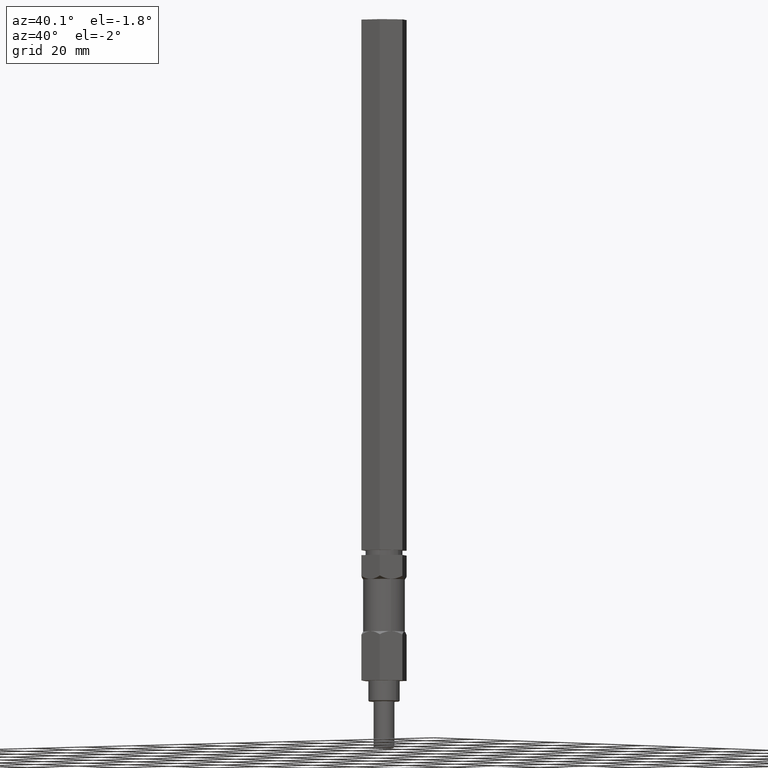
[diagram: clean part render]
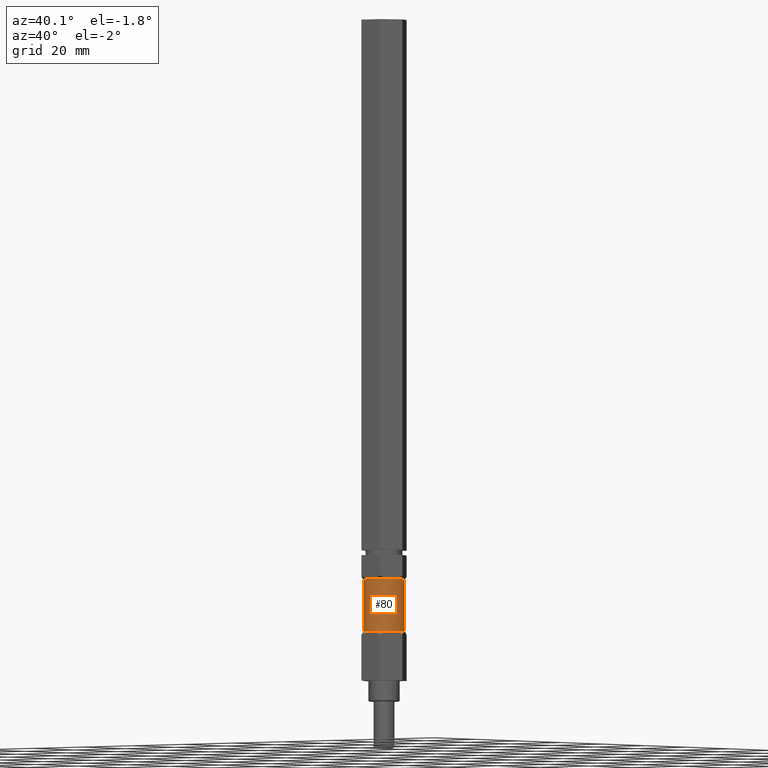
[diagram: same view with one face highlighted and labeled with its STEP entity id]
A machine part, auxiliary view. The second image highlights one B-rep face of the part: STEP entity #80.
In plain terms, the highlighted cylindrical surface (bore or boss wall) has radius 6.35 mm, axis along (-0, -0, 1).
Its self-contained STEP definition (entity closure, byte-faithful):
#57 = EDGE_CURVE ( 'NONE', #1714, #1814, #1559, .T. ) ;
#62 = ORIENTED_EDGE ( 'NONE', *, *, #1272, .T. ) ;
#80 = ADVANCED_FACE ( 'NONE', ( #1193, #792 ), #355, .T. ) ;
#114 = ORIENTED_EDGE ( 'NONE', *, *, #1328, .T. ) ;
#138 = DIRECTION ( 'NONE',  ( 0.0000000000000000000, 0.0000000000000000000, -1.000000000000000000 ) ) ;
#155 = CIRCLE ( 'NONE', #1788, 6.350000000000001421 ) ;
#159 = DIRECTION ( 'NONE',  ( 1.000000000000000000, 0.0000000000000000000, 0.0000000000000000000 ) ) ;
#176 = AXIS2_PLACEMENT_3D ( 'NONE', #728, #1390, #197 ) ;
#197 = DIRECTION ( 'NONE',  ( 1.000000000000000000, 0.0000000000000000000, 0.0000000000000000000 ) ) ;
#207 = CIRCLE ( 'NONE', #1817, 6.350000000000001421 ) ;
#228 = CARTESIAN_POINT ( 'NONE',  ( -45.17549388958741474, 28.90928631796896298, -62.54626758042453361 ) ) ;
#244 = DIRECTION ( 'NONE',  ( 0.0000000000000000000, 0.0000000000000000000, -1.000000000000000000 ) ) ;
#247 = VERTEX_POINT ( 'NONE', #1029 ) ;
#281 = EDGE_CURVE ( 'NONE', #922, #1175, #207, .T. ) ;
#288 = VERTEX_POINT ( 'NONE', #686 ) ;
#302 = VERTEX_POINT ( 'NONE', #1222 ) ;
#313 = CIRCLE ( 'NONE', #2065, 6.350000000000001421 ) ;
#323 = CARTESIAN_POINT ( 'NONE',  ( -45.17549388958741474, 28.90928631796896298, -62.54626758042453361 ) ) ;
#355 = CYLINDRICAL_SURFACE ( 'NONE', #1238, 6.350000000000001421 ) ;
#356 = EDGE_LOOP ( 'NONE', ( #62, #1250, #734, #1061, #395, #1633 ) ) ;
#395 = ORIENTED_EDGE ( 'NONE', *, *, #1730, .T. ) ;
#396 = CARTESIAN_POINT ( 'NONE',  ( -39.67623257555622729, 25.73428631796896582, -62.54626758042453361 ) ) ;
#398 = EDGE_CURVE ( 'NONE', #1814, #922, #1430, .T. ) ;
#411 = CIRCLE ( 'NONE', #176, 6.350000000000001421 ) ;
#424 = CARTESIAN_POINT ( 'NONE',  ( -45.17549388958741474, 28.90928631796896298, -78.48857250042458134 ) ) ;
#427 = DIRECTION ( 'NONE',  ( 0.0000000000000000000, 0.0000000000000000000, -1.000000000000000000 ) ) ;
#453 = EDGE_CURVE ( 'NONE', #1501, #589, #1843, .T. ) ;
#455 = CARTESIAN_POINT ( 'NONE',  ( -45.17549388958741474, 28.90928631796896298, -78.48857250042458134 ) ) ;
#471 = CIRCLE ( 'NONE', #2005, 6.350000000000001421 ) ;
#476 = DIRECTION ( 'NONE',  ( 1.000000000000000000, 0.0000000000000000000, 0.0000000000000000000 ) ) ;
#498 = DIRECTION ( 'NONE',  ( 0.0000000000000000000, 0.0000000000000000000, 1.000000000000000000 ) ) ;
#532 = CARTESIAN_POINT ( 'NONE',  ( -45.17549388958741474, 28.90928631796896298, -78.48857250042458134 ) ) ;
#584 = CARTESIAN_POINT ( 'NONE',  ( -39.67623257555623439, 32.08428631796896724, -78.48857250042458134 ) ) ;
#589 = VERTEX_POINT ( 'NONE', #584 ) ;
#592 = VERTEX_POINT ( 'NONE', #717 ) ;
#607 = EDGE_CURVE ( 'NONE', #288, #247, #630, .T. ) ;
#613 = DIRECTION ( 'NONE',  ( 0.0000000000000000000, 0.0000000000000000000, -1.000000000000000000 ) ) ;
#629 = AXIS2_PLACEMENT_3D ( 'NONE', #455, #1130, #2025 ) ;
#630 = CIRCLE ( 'NONE', #1581, 6.350000000000001421 ) ;
#677 = EDGE_CURVE ( 'NONE', #1608, #748, #980, .T. ) ;
#686 = CARTESIAN_POINT ( 'NONE',  ( -50.67475520361860220, 32.08428631796896724, -78.48857250042458134 ) ) ;
#692 = EDGE_LOOP ( 'NONE', ( #2111, #794, #704, #948, #1445, #114 ) ) ;
#704 = ORIENTED_EDGE ( 'NONE', *, *, #1469, .T. ) ;
#717 = CARTESIAN_POINT ( 'NONE',  ( -45.17549388958741474, 22.55928631796896155, -78.48857250042458134 ) ) ;
#728 = CARTESIAN_POINT ( 'NONE',  ( -45.17549388958741474, 28.90928631796896298, -78.48857250042458134 ) ) ;
#734 = ORIENTED_EDGE ( 'NONE', *, *, #398, .T. ) ;
#748 = VERTEX_POINT ( 'NONE', #1634 ) ;
#766 = CARTESIAN_POINT ( 'NONE',  ( -45.17549388958741474, 28.90928631796896298, -78.48857250042458134 ) ) ;
#792 = FACE_OUTER_BOUND ( 'NONE', #692, .T. ) ;
#794 = ORIENTED_EDGE ( 'NONE', *, *, #607, .T. ) ;
#799 = CARTESIAN_POINT ( 'NONE',  ( -39.67623257555623439, 32.08428631796896724, -62.54626758042453361 ) ) ;
#803 = DIRECTION ( 'NONE',  ( 1.000000000000000000, 0.0000000000000000000, 0.0000000000000000000 ) ) ;
#827 = DIRECTION ( 'NONE',  ( -0.0000000000000000000, -0.0000000000000000000, 1.000000000000000000 ) ) ;
#853 = CARTESIAN_POINT ( 'NONE',  ( -45.17549388958741474, 28.90928631796896298, -62.54626758042453361 ) ) ;
#857 = CIRCLE ( 'NONE', #2070, 6.350000000000001421 ) ;
#875 = DIRECTION ( 'NONE',  ( 0.0000000000000000000, 0.0000000000000000000, 1.000000000000000000 ) ) ;
#922 = VERTEX_POINT ( 'NONE', #1644 ) ;
#948 = ORIENTED_EDGE ( 'NONE', *, *, #1985, .T. ) ;
#963 = CARTESIAN_POINT ( 'NONE',  ( -45.17549388958741474, 28.90928631796896298, -78.48857250042458134 ) ) ;
#969 = CARTESIAN_POINT ( 'NONE',  ( -50.67475520361860220, 32.08428631796896013, -62.54626758042453361 ) ) ;
#980 = CIRCLE ( 'NONE', #1728, 6.350000000000001421 ) ;
#1020 = AXIS2_PLACEMENT_3D ( 'NONE', #323, #427, #1075 ) ;
#1029 = CARTESIAN_POINT ( 'NONE',  ( -50.67475520361859509, 25.73428631796896582, -78.48857250042458134 ) ) ;
#1040 = DIRECTION ( 'NONE',  ( 1.000000000000000000, 0.0000000000000000000, 0.0000000000000000000 ) ) ;
#1061 = ORIENTED_EDGE ( 'NONE', *, *, #281, .T. ) ;
#1075 = DIRECTION ( 'NONE',  ( 1.000000000000000000, 1.639108796198557537E-15, 0.0000000000000000000 ) ) ;
#1121 = DIRECTION ( 'NONE',  ( 1.000000000000000000, 0.0000000000000000000, 0.0000000000000000000 ) ) ;
#1130 = DIRECTION ( 'NONE',  ( 0.0000000000000000000, 0.0000000000000000000, 1.000000000000000000 ) ) ;
#1148 = EDGE_CURVE ( 'NONE', #302, #288, #411, .T. ) ;
#1175 = VERTEX_POINT ( 'NONE', #799 ) ;
#1193 = FACE_OUTER_BOUND ( 'NONE', #356, .T. ) ;
#1199 = DIRECTION ( 'NONE',  ( 0.0000000000000000000, 0.0000000000000000000, 1.000000000000000000 ) ) ;
#1204 = CARTESIAN_POINT ( 'NONE',  ( -45.17549388958741474, 28.90928631796896298, -62.54626758042453361 ) ) ;
#1222 = CARTESIAN_POINT ( 'NONE',  ( -45.17549388958741474, 35.25928631796896440, -78.48857250042458134 ) ) ;
#1227 = DIRECTION ( 'NONE',  ( 1.000000000000000000, 0.0000000000000000000, 0.0000000000000000000 ) ) ;
#1238 = AXIS2_PLACEMENT_3D ( 'NONE', #1432, #827, #1040 ) ;
#1250 = ORIENTED_EDGE ( 'NONE', *, *, #57, .T. ) ;
#1272 = EDGE_CURVE ( 'NONE', #748, #1714, #313, .T. ) ;
#1287 = CARTESIAN_POINT ( 'NONE',  ( -45.17549388958741474, 28.90928631796896298, -62.54626758042453361 ) ) ;
#1328 = EDGE_CURVE ( 'NONE', #589, #302, #2118, .T. ) ;
#1390 = DIRECTION ( 'NONE',  ( 0.0000000000000000000, 0.0000000000000000000, 1.000000000000000000 ) ) ;
#1430 = CIRCLE ( 'NONE', #1580, 6.350000000000001421 ) ;
#1432 = CARTESIAN_POINT ( 'NONE',  ( -45.17549388958741474, 28.90928631796896298, -114.1799331959887951 ) ) ;
#1445 = ORIENTED_EDGE ( 'NONE', *, *, #453, .T. ) ;
#1469 = EDGE_CURVE ( 'NONE', #247, #592, #155, .T. ) ;
#1501 = VERTEX_POINT ( 'NONE', #1657 ) ;
#1550 = CARTESIAN_POINT ( 'NONE',  ( -50.67475520361859509, 25.73428631796896582, -62.54626758042453361 ) ) ;
#1559 = CIRCLE ( 'NONE', #1020, 6.350000000000001421 ) ;
#1580 = AXIS2_PLACEMENT_3D ( 'NONE', #1204, #1802, #1121 ) ;
#1581 = AXIS2_PLACEMENT_3D ( 'NONE', #424, #875, #159 ) ;
#1608 = VERTEX_POINT ( 'NONE', #396 ) ;
#1631 = CARTESIAN_POINT ( 'NONE',  ( -45.17549388958741474, 28.90928631796896298, -62.54626758042453361 ) ) ;
#1633 = ORIENTED_EDGE ( 'NONE', *, *, #677, .T. ) ;
#1634 = CARTESIAN_POINT ( 'NONE',  ( -45.17549388958741474, 22.55928631796896155, -62.54626758042453361 ) ) ;
#1642 = DIRECTION ( 'NONE',  ( 1.000000000000000000, 1.092739197465705090E-15, 0.0000000000000000000 ) ) ;
#1644 = CARTESIAN_POINT ( 'NONE',  ( -45.17549388958741474, 35.25928631796896440, -62.54626758042453361 ) ) ;
#1657 = CARTESIAN_POINT ( 'NONE',  ( -39.67623257555622729, 25.73428631796896582, -78.48857250042458134 ) ) ;
#1670 = DIRECTION ( 'NONE',  ( 1.000000000000000000, -1.092739197465705090E-15, 0.0000000000000000000 ) ) ;
#1714 = VERTEX_POINT ( 'NONE', #1550 ) ;
#1728 = AXIS2_PLACEMENT_3D ( 'NONE', #853, #244, #1227 ) ;
#1730 = EDGE_CURVE ( 'NONE', #1175, #1608, #471, .T. ) ;
#1788 = AXIS2_PLACEMENT_3D ( 'NONE', #963, #498, #2130 ) ;
#1802 = DIRECTION ( 'NONE',  ( 0.0000000000000000000, 0.0000000000000000000, -1.000000000000000000 ) ) ;
#1814 = VERTEX_POINT ( 'NONE', #969 ) ;
#1817 = AXIS2_PLACEMENT_3D ( 'NONE', #228, #2138, #1642 ) ;
#1842 = DIRECTION ( 'NONE',  ( 1.000000000000000000, 0.0000000000000000000, 0.0000000000000000000 ) ) ;
#1843 = CIRCLE ( 'NONE', #629, 6.350000000000001421 ) ;
#1870 = DIRECTION ( 'NONE',  ( 0.0000000000000000000, 0.0000000000000000000, 1.000000000000000000 ) ) ;
#1985 = EDGE_CURVE ( 'NONE', #592, #1501, #857, .T. ) ;
#2005 = AXIS2_PLACEMENT_3D ( 'NONE', #1631, #138, #803 ) ;
#2012 = AXIS2_PLACEMENT_3D ( 'NONE', #766, #1870, #476 ) ;
#2025 = DIRECTION ( 'NONE',  ( 1.000000000000000000, 0.0000000000000000000, 0.0000000000000000000 ) ) ;
#2065 = AXIS2_PLACEMENT_3D ( 'NONE', #1287, #613, #1670 ) ;
#2070 = AXIS2_PLACEMENT_3D ( 'NONE', #532, #1199, #1842 ) ;
#2111 = ORIENTED_EDGE ( 'NONE', *, *, #1148, .T. ) ;
#2118 = CIRCLE ( 'NONE', #2012, 6.350000000000001421 ) ;
#2130 = DIRECTION ( 'NONE',  ( 1.000000000000000000, 0.0000000000000000000, 0.0000000000000000000 ) ) ;
#2138 = DIRECTION ( 'NONE',  ( 0.0000000000000000000, 0.0000000000000000000, -1.000000000000000000 ) ) ;